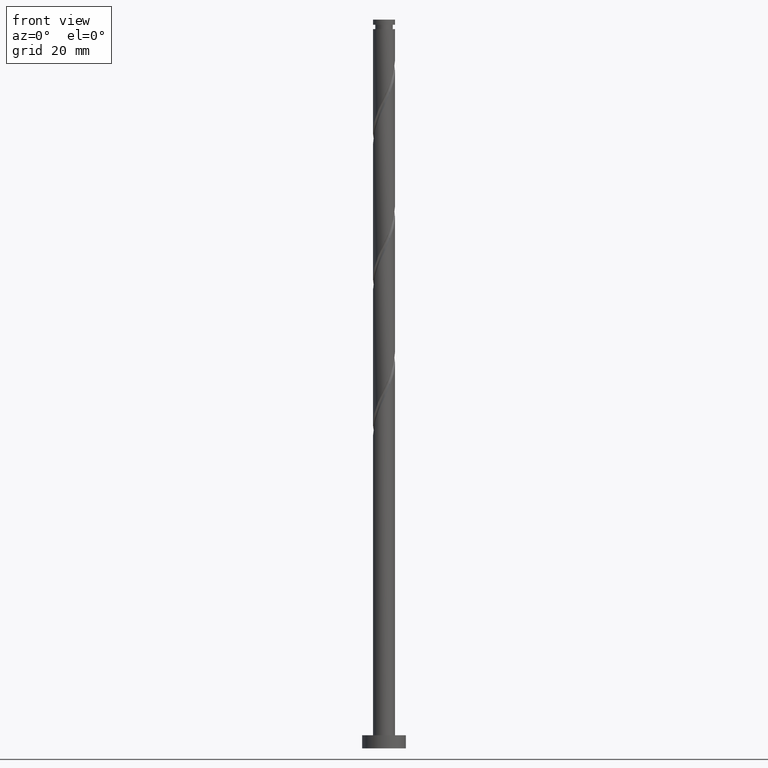
[diagram: clean part render]
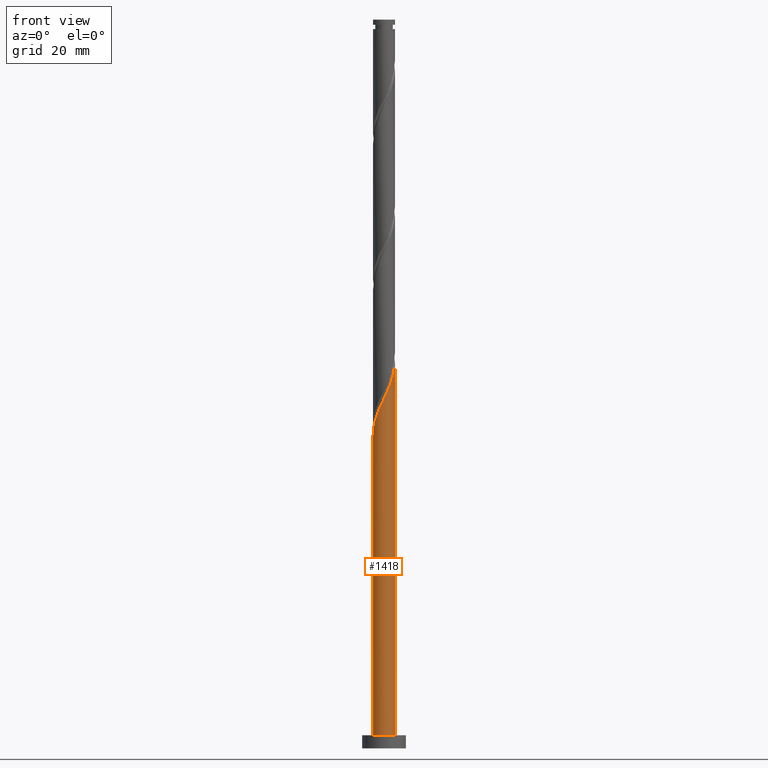
[diagram: same view with one face highlighted and labeled with its STEP entity id]
A machine part, front view. The second image highlights one B-rep face of the part: STEP entity #1418.
In plain terms, the highlighted cylindrical surface (edge-blend (fillet) strip) has radius 2.5 mm, axis along (-0, -0, -1).
Its self-contained STEP definition (entity closure, byte-faithful):
#13 = VERTEX_POINT ( 'NONE', #774 ) ;
#35 = CARTESIAN_POINT ( 'NONE',  ( 0.000000000000000000, 0.000000000000000000, 166.5200000000000102 ) ) ;
#48 = CARTESIAN_POINT ( 'NONE',  ( -0.4820743581320890425, -2.475061956595794310, 78.91428889633976951 ) ) ;
#62 = FACE_OUTER_BOUND ( 'NONE', #107, .T. ) ;
#107 = EDGE_LOOP ( 'NONE', ( #1167, #1619, #1469, #1530 ) ) ;
#169 = CARTESIAN_POINT ( 'NONE',  ( 2.475061956595793866, -0.4820743581320903193, 87.24762222967311232 ) ) ;
#192 = CARTESIAN_POINT ( 'NONE',  ( -2.384503709418420048, -0.8200423376424301747, 73.35873334078421237 ) ) ;
#200 = CARTESIAN_POINT ( 'NONE',  ( 1.114648691668402858, -2.237757425227751007, 82.38651111856195541 ) ) ;
#257 = AXIS2_PLACEMENT_3D ( 'NONE', #1525, #1096, #1211 ) ;
#325 = CARTESIAN_POINT ( 'NONE',  ( 2.265956240501271868, -1.106241244887210762, 85.85873334078421237 ) ) ;
#334 = CARTESIAN_POINT ( 'NONE',  ( -1.106241244887210540, -2.265956240501271868, 77.52540000745092641 ) ) ;
#352 = LINE ( 'NONE', #780, #1444 ) ;
#353 = EDGE_CURVE ( 'NONE', #535, #1157, #1009, .T. ) ;
#428 = DIRECTION ( 'NONE',  ( -1.000000000000000000, 0.000000000000000000, 0.000000000000000000 ) ) ;
#462 = CARTESIAN_POINT ( 'NONE',  ( 1.655842198490353079, -1.873015379995223162, 83.77540000745085536 ) ) ;
#535 = VERTEX_POINT ( 'NONE', #1679 ) ;
#574 = CARTESIAN_POINT ( 'NONE',  ( -2.237757425227750119, -1.114648691668403746, 74.05317778522866945 ) ) ;
#578 = EDGE_CURVE ( 'NONE', #13, #1157, #352, .T. ) ;
#584 = CARTESIAN_POINT ( 'NONE',  ( 1.902429351286330172, -1.655019618953364136, 84.46984445189534085 ) ) ;
#743 = CARTESIAN_POINT ( 'NONE',  ( -2.500000000000000000, 0.000000000000000000, 166.5200000000000102 ) ) ;
#774 = CARTESIAN_POINT ( 'NONE',  ( 2.500000000000003997, -5.831975933011805756E-16, 88.26738890779638780 ) ) ;
#780 = CARTESIAN_POINT ( 'NONE',  ( 2.500000000000000000, 3.061616997868383141E-16, 166.5200000000000102 ) ) ;
#839 = VERTEX_POINT ( 'NONE', #1385 ) ;
#841 = CARTESIAN_POINT ( 'NONE',  ( 2.084192795893800021, -1.380630431920287338, 85.16428889633976951 ) ) ;
#857 = CARTESIAN_POINT ( 'NONE',  ( 0.4974937185533099271, -2.450000000000003286, 80.99762222967311232 ) ) ;
#868 = EDGE_CURVE ( 'NONE', #839, #13, #958, .T. ) ;
#958 =( BOUNDED_CURVE ( )  B_SPLINE_CURVE ( 2, ( #1684, #1554, #1273, #192, #574, #1403, #1118, #1136, #1283, #334, #971, #48, #1421, #1661, #857, #1395, #200, #1538, #462, #584, #841, #325, #1125, #169, #1412, #1290, #1524 ),
 .UNSPECIFIED., .F., .T. ) 
 B_SPLINE_CURVE_WITH_KNOTS ( ( 3, 2, 2, 2, 2, 2, 2, 2, 2, 2, 2, 2, 2, 3 ),
 ( 0.05453176698144644730, 0.06250000000000000000, 0.07291666666666662966, 0.08333333333333337034, 0.09375000000000000000, 0.1041666666666666297, 0.1145833333333333703, 0.1250000000000000000, 0.1354166666666666297, 0.1458333333333333703, 0.1562500000000000000, 0.1666666666666666297, 0.1770833333333333703, 0.1795317669814465167 ),
 .UNSPECIFIED. ) 
 CURVE ( )  GEOMETRIC_REPRESENTATION_ITEM ( )  RATIONAL_B_SPLINE_CURVE ( ( 0.9062941362546486079, 0.9031415850403530232, 0.9090909090909286006, 0.9013135103398467463, 0.9090909090909286006, 0.9013135103398467463, 0.9090909090909286006, 0.9013135103398467463, 0.9090909090909286006, 0.9013135103398467463, 0.9090909090909286006, 0.9013135103398467463, 0.9090909090909286006, 0.9013135103398467463, 0.9090909090909286006, 0.9013135103398467463, 0.9090909090909286006, 0.9013135103398467463, 0.9090909090909286006, 0.9013135103398467463, 0.9090909090909286006, 0.9013135103398467463, 0.9090909090909286006, 0.9013135103398467463, 0.9090909090909286006, 0.9072628343904221015, 0.9062941362546486079 ) ) 
 REPRESENTATION_ITEM ( '' )  );
#971 = CARTESIAN_POINT ( 'NONE',  ( -0.7941578015096503185, -2.370509098548532645, 78.21984445189532664 ) ) ;
#1009 = CIRCLE ( 'NONE', #257, 2.500000000000000000 ) ;
#1015 = DIRECTION ( 'NONE',  ( -0.000000000000000000, -0.000000000000000000, -1.000000000000000000 ) ) ;
#1096 = DIRECTION ( 'NONE',  ( 0.000000000000000000, 0.000000000000000000, 1.000000000000000000 ) ) ;
#1118 = CARTESIAN_POINT ( 'NONE',  ( -1.873015379995222496, -1.655842198490353079, 75.44206667411754097 ) ) ;
#1125 = CARTESIAN_POINT ( 'NONE',  ( 2.370509098548532645, -0.7941578015096506515, 86.55317778522864103 ) ) ;
#1136 = CARTESIAN_POINT ( 'NONE',  ( -1.655019618953364136, -1.902429351286330172, 76.13651111856202647 ) ) ;
#1147 = LINE ( 'NONE', #743, #1154 ) ;
#1153 = EDGE_CURVE ( 'NONE', #839, #535, #1147, .T. ) ;
#1154 = VECTOR ( 'NONE', #1015, 1000.000000000000000 ) ;
#1157 = VERTEX_POINT ( 'NONE', #1600 ) ;
#1167 = ORIENTED_EDGE ( 'NONE', *, *, #578, .F. ) ;
#1211 = DIRECTION ( 'NONE',  ( 1.000000000000000000, 0.000000000000000000, 0.000000000000000000 ) ) ;
#1273 = CARTESIAN_POINT ( 'NONE',  ( -2.450000000000003286, -0.4974937185533100381, 72.66428889633976951 ) ) ;
#1283 = CARTESIAN_POINT ( 'NONE',  ( -1.380630431920286449, -2.084192795893800465, 76.83095556300641249 ) ) ;
#1290 = CARTESIAN_POINT ( 'NONE',  ( 2.500000000000003997, -0.07685487914417998834, 88.10422521976823873 ) ) ;
#1334 = AXIS2_PLACEMENT_3D ( 'NONE', #35, #1680, #428 ) ;
#1374 = CYLINDRICAL_SURFACE ( 'NONE', #1334, 2.500000000000000000 ) ;
#1385 = CARTESIAN_POINT ( 'NONE',  ( -2.500000000000003553, -7.925505755118609627E-15, 71.60072224112973061 ) ) ;
#1395 = CARTESIAN_POINT ( 'NONE',  ( 0.8200423376424301747, -2.384503709418420048, 81.69206667411752676 ) ) ;
#1403 = CARTESIAN_POINT ( 'NONE',  ( -2.091011141037083298, -1.409255045694377317, 74.74762222967311232 ) ) ;
#1412 = CARTESIAN_POINT ( 'NONE',  ( 2.495279123588689973, -0.1535646293339512636, 87.94206667411755518 ) ) ;
#1418 = ADVANCED_FACE ( 'NONE', ( #62 ), #1374, .T. ) ;
#1421 = CARTESIAN_POINT ( 'NONE',  ( -0.1535646293339500146, -2.495279123588689973, 79.60873334078419816 ) ) ;
#1444 = VECTOR ( 'NONE', #1719, 1000.000000000000000 ) ;
#1469 = ORIENTED_EDGE ( 'NONE', *, *, #1153, .T. ) ;
#1524 = CARTESIAN_POINT ( 'NONE',  ( 2.500000000000004441, -5.831975933011805756E-16, 88.26738890779638780 ) ) ;
#1525 = CARTESIAN_POINT ( 'NONE',  ( 0.000000000000000000, 0.000000000000000000, 3.000000000000000000 ) ) ;
#1530 = ORIENTED_EDGE ( 'NONE', *, *, #353, .T. ) ;
#1538 = CARTESIAN_POINT ( 'NONE',  ( 1.409255045694376873, -2.091011141037083298, 83.08095556300645512 ) ) ;
#1554 = CARTESIAN_POINT ( 'NONE',  ( -2.500000000000003109, -0.2512594538148067436, 72.13414861031900216 ) ) ;
#1600 = CARTESIAN_POINT ( 'NONE',  ( 2.500000000000000000, 3.061616997868383141E-16, 3.000000000000000000 ) ) ;
#1619 = ORIENTED_EDGE ( 'NONE', *, *, #868, .F. ) ;
#1661 = CARTESIAN_POINT ( 'NONE',  ( 0.1749450994641890966, -2.515496290581588745, 80.30317778522868366 ) ) ;
#1679 = CARTESIAN_POINT ( 'NONE',  ( -2.500000000000000000, 0.000000000000000000, 3.000000000000000000 ) ) ;
#1680 = DIRECTION ( 'NONE',  ( -0.000000000000000000, -0.000000000000000000, -1.000000000000000000 ) ) ;
#1684 = CARTESIAN_POINT ( 'NONE',  ( -2.500000000000003997, -7.925505755118609627E-15, 71.60072224112973061 ) ) ;
#1719 = DIRECTION ( 'NONE',  ( -0.000000000000000000, -0.000000000000000000, -1.000000000000000000 ) ) ;